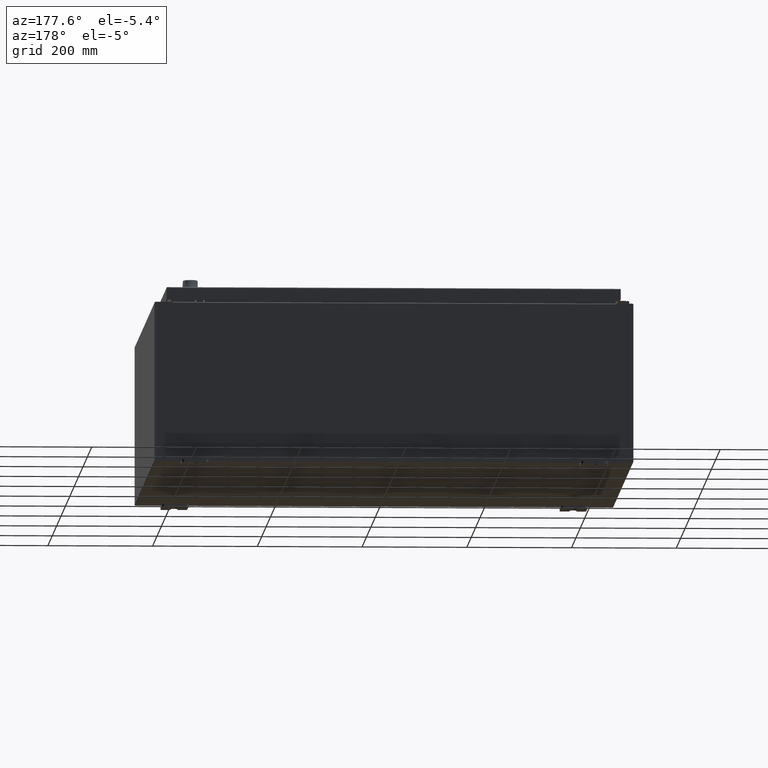
[diagram: clean part render]
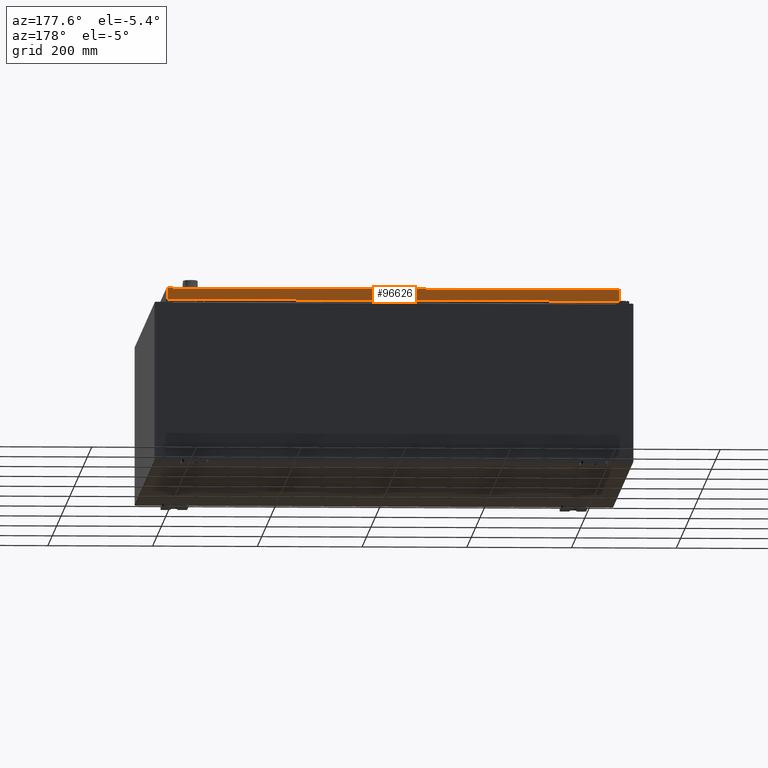
[diagram: same view with one face highlighted and labeled with its STEP entity id]
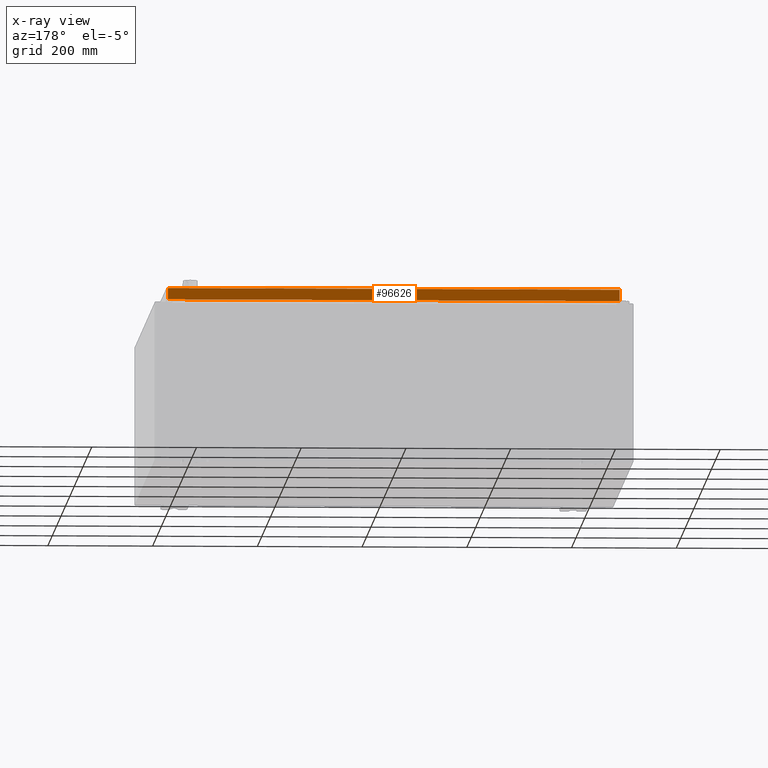
[diagram: x-ray of the same camera — body ghosted, the highlighted face saturated]
A machine part, auxiliary view. The second image highlights one B-rep face of the part: STEP entity #96626.
The next image is the same camera in x-ray: the body ghosted, the highlighted face saturated — about 0% of this face is hidden behind the body in this view.
In plain terms, the highlighted planar face has unit normal (0, -1, -0).
Its self-contained STEP definition (entity closure, byte-faithful):
#4085 = PLANE ( 'NONE',  #56813 ) ;
#6439 = EDGE_LOOP ( 'NONE', ( #94851, #84123, #11228, #122858 ) ) ;
#9719 = CARTESIAN_POINT ( 'NONE',  ( -16.98915786437626400, 17.09400000000000800, -0.9377000000000040900 ) ) ;
#10766 = DIRECTION ( 'NONE',  ( 1.000000000000000000, 4.379057701015054300E-047, 1.239713195391617600E-016 ) ) ;
#11177 = EDGE_CURVE ( 'NONE', #109247, #45602, #80947, .T. ) ;
#11228 = ORIENTED_EDGE ( 'NONE', *, *, #91730, .F. ) ;
#12459 = VERTEX_POINT ( 'NONE', #117297 ) ;
#13236 = VERTEX_POINT ( 'NONE', #9719 ) ;
#19762 = CARTESIAN_POINT ( 'NONE',  ( 16.98915786437627100, 17.09400000000000500, 4.354999984715568300E-014 ) ) ;
#27189 = VECTOR ( 'NONE', #10766, 39.37007874015748100 ) ;
#29474 = VECTOR ( 'NONE', #119994, 39.37007874015748100 ) ;
#33271 = DIRECTION ( 'NONE',  ( 0.0000000000000000000, 2.532419924601853900E-015, -1.000000000000000000 ) ) ;
#38355 = VECTOR ( 'NONE', #67964, 39.37007874015748100 ) ;
#45602 = VERTEX_POINT ( 'NONE', #84814 ) ;
#48619 = CARTESIAN_POINT ( 'NONE',  ( -16.98915786437626400, 17.09400000000000500, -0.07469999999999980800 ) ) ;
#48884 = CARTESIAN_POINT ( 'NONE',  ( 16.98915786437627100, 17.09400000000000500, -0.08769999999999789100 ) ) ;
#56813 = AXIS2_PLACEMENT_3D ( 'NONE', #110226, #91138, #33271 ) ;
#58303 = DIRECTION ( 'NONE',  ( -0.0000000000000000000, 2.532419924601853900E-015, -1.000000000000000000 ) ) ;
#62135 = CARTESIAN_POINT ( 'NONE',  ( -17.07799999999999600, 17.09400000000000500, -0.08770000000000008300 ) ) ;
#67964 = DIRECTION ( 'NONE',  ( 0.0000000000000000000, 2.532419924601853900E-015, -1.000000000000000000 ) ) ;
#68698 = CARTESIAN_POINT ( 'NONE',  ( -17.07799999999999600, 17.09400000000000800, -0.9377000000000040900 ) ) ;
#78015 = LINE ( 'NONE', #48619, #123382 ) ;
#78653 = LINE ( 'NONE', #68698, #27189 ) ;
#80947 = LINE ( 'NONE', #62135, #29474 ) ;
#83431 = FACE_OUTER_BOUND ( 'NONE', #6439, .T. ) ;
#84123 = ORIENTED_EDGE ( 'NONE', *, *, #86558, .T. ) ;
#84814 = CARTESIAN_POINT ( 'NONE',  ( -16.98915786437626700, 17.09400000000000500, -0.08769999999999898700 ) ) ;
#86558 = EDGE_CURVE ( 'NONE', #109247, #12459, #118508, .T. ) ;
#91138 = DIRECTION ( 'NONE',  ( 3.139474396801564100E-031, -1.000000000000000000, -2.532419924601853900E-015 ) ) ;
#91730 = EDGE_CURVE ( 'NONE', #13236, #12459, #78653, .T. ) ;
#94851 = ORIENTED_EDGE ( 'NONE', *, *, #11177, .F. ) ;
#96626 = ADVANCED_FACE ( 'NONE', ( #83431 ), #4085, .F. ) ;
#109247 = VERTEX_POINT ( 'NONE', #48884 ) ;
#110226 = CARTESIAN_POINT ( 'NONE',  ( -5.366617533892595200E-030, 17.09400000000000500, 4.354999984715568300E-014 ) ) ;
#117297 = CARTESIAN_POINT ( 'NONE',  ( 16.98915786437627100, 17.09400000000000800, -0.9376999999999997600 ) ) ;
#118508 = LINE ( 'NONE', #19762, #38355 ) ;
#119994 = DIRECTION ( 'NONE',  ( -1.000000000000000000, -1.519100514581402700E-031, -6.398519718150284000E-017 ) ) ;
#121739 = EDGE_CURVE ( 'NONE', #45602, #13236, #78015, .T. ) ;
#122858 = ORIENTED_EDGE ( 'NONE', *, *, #121739, .F. ) ;
#123382 = VECTOR ( 'NONE', #58303, 39.37007874015748100 ) ;